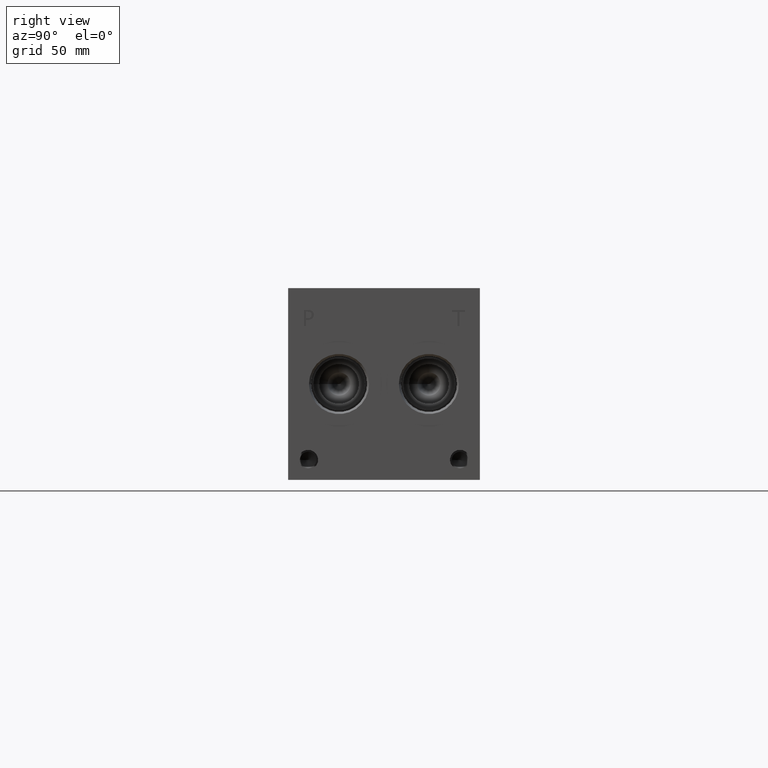
[diagram: clean part render]
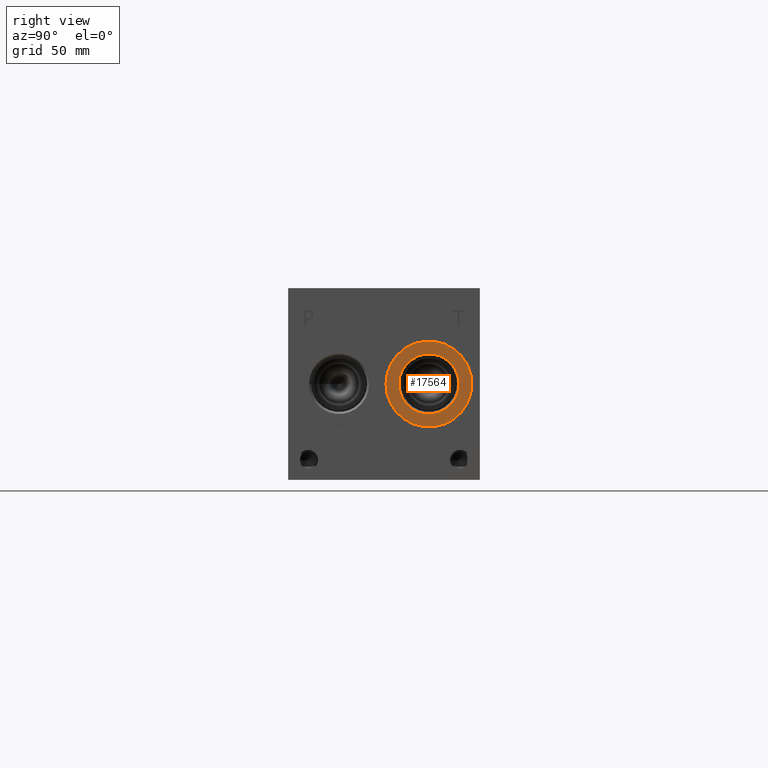
[diagram: same view with one face highlighted and labeled with its STEP entity id]
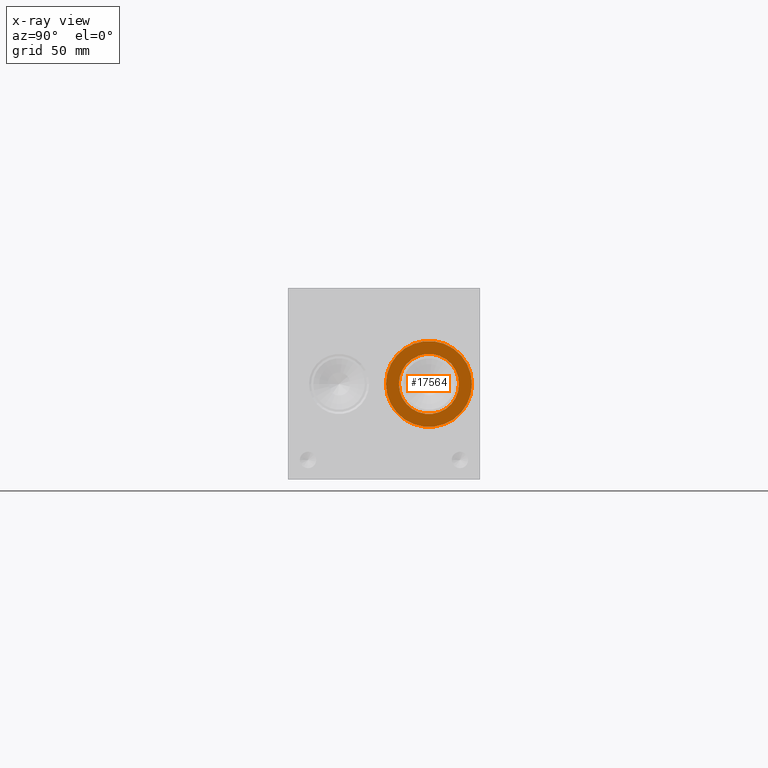
[diagram: x-ray of the same camera — body ghosted, the highlighted face saturated]
A machine part, right view. The second image highlights one B-rep face of the part: STEP entity #17564.
The next image is the same camera in x-ray: the body ghosted, the highlighted face saturated — about 0% of this face is hidden behind the body in this view.
In plain terms, the highlighted planar face has unit normal (1, 0, 0).
Its self-contained STEP definition (entity closure, byte-faithful):
#542=CIRCLE('',#18556,17.0688);
#543=CIRCLE('',#18557,17.0688);
#544=CIRCLE('',#18558,11.9507);
#937=FACE_BOUND('',#3438,.T.);
#2407=FACE_OUTER_BOUND('',#3437,.T.);
#3437=EDGE_LOOP('',(#14870,#14871));
#3438=EDGE_LOOP('',(#14872));
#8030=VERTEX_POINT('',#30008);
#8031=VERTEX_POINT('',#30009);
#8032=VERTEX_POINT('',#30012);
#10407=EDGE_CURVE('',#8030,#8031,#542,.T.);
#10408=EDGE_CURVE('',#8031,#8030,#543,.T.);
#10409=EDGE_CURVE('',#8032,#8032,#544,.T.);
#14870=ORIENTED_EDGE('',*,*,#10407,.T.);
#14871=ORIENTED_EDGE('',*,*,#10408,.T.);
#14872=ORIENTED_EDGE('',*,*,#10409,.F.);
#16197=PLANE('',#18555);
#17564=ADVANCED_FACE('',(#2407,#937),#16197,.T.);
#18555=AXIS2_PLACEMENT_3D('',#30007,#21968,#21969);
#18556=AXIS2_PLACEMENT_3D('',#30010,#21970,#21971);
#18557=AXIS2_PLACEMENT_3D('',#30011,#21972,#21973);
#18558=AXIS2_PLACEMENT_3D('',#30013,#21974,#21975);
#21968=DIRECTION('center_axis',(1.,0.,0.));
#21969=DIRECTION('ref_axis',(0.,1.,0.));
#21970=DIRECTION('center_axis',(1.,0.,0.));
#21971=DIRECTION('ref_axis',(0.,1.,0.));
#21972=DIRECTION('center_axis',(1.,0.,0.));
#21973=DIRECTION('ref_axis',(0.,1.,0.));
#21974=DIRECTION('center_axis',(1.,0.,0.));
#21975=DIRECTION('ref_axis',(0.,1.,0.));
#30007=CARTESIAN_POINT('Origin',(269.0876,55.9562,38.1));
#30008=CARTESIAN_POINT('',(269.0876,73.025,38.1));
#30009=CARTESIAN_POINT('',(269.0876,38.8874,38.1));
#30010=CARTESIAN_POINT('Origin',(269.0876,55.9562,38.1));
#30011=CARTESIAN_POINT('Origin',(269.0876,55.9562,38.1));
#30012=CARTESIAN_POINT('',(269.0876,44.0055,38.1));
#30013=CARTESIAN_POINT('Origin',(269.0876,55.9562,38.1));